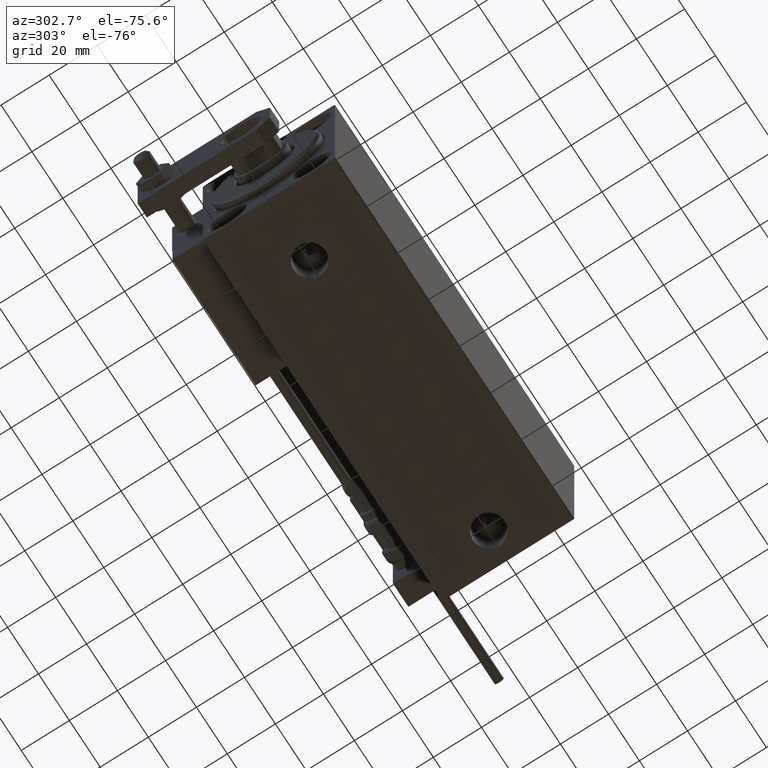
[diagram: clean part render]
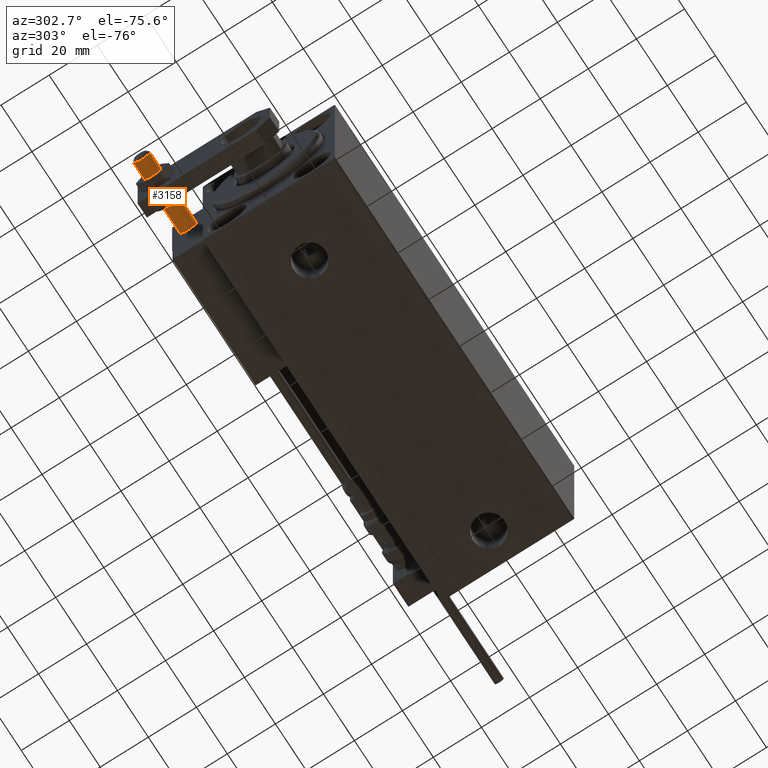
[diagram: same view with one face highlighted and labeled with its STEP entity id]
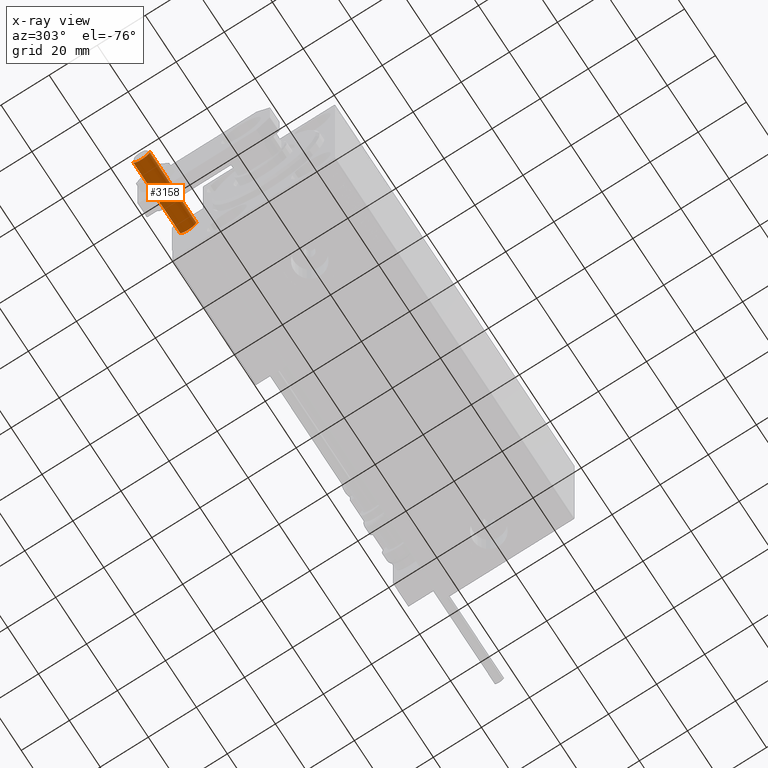
[diagram: x-ray of the same camera — body ghosted, the highlighted face saturated]
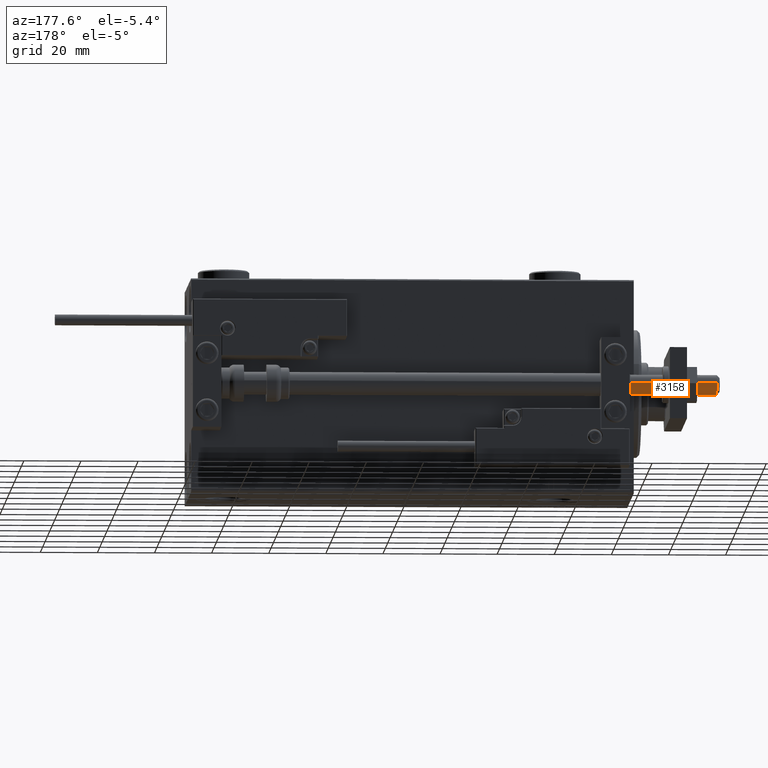
[diagram: same view with one face highlighted and labeled with its STEP entity id]
A machine part, auxiliary view. The second image highlights one B-rep face of the part: STEP entity #3158.
The next image is the same camera in x-ray: the body ghosted, the highlighted face saturated — about 0% of this face is hidden behind the body in this view.
A second angle (auxiliary view) of the same face is appended — the face is thin or edge-on in the first view.
In plain terms, the highlighted cylindrical surface (edge-blend (fillet) strip) has radius 3.5 mm, axis along (1, -0, -0).
Its self-contained STEP definition (entity closure, byte-faithful):
#1724 = EDGE_CURVE ( 'NONE', #23884, #50868, #47124, .T. ) ;
#1849 = CARTESIAN_POINT ( 'NONE',  ( 3.500000000000000000, 0.000000000000000000, -28.69999999999998863 ) ) ;
#3158 = ADVANCED_FACE ( 'NONE', ( #9357 ), #25270, .T. ) ;
#3471 = EDGE_CURVE ( 'NONE', #23884, #11546, #30863, .T. ) ;
#3984 = CARTESIAN_POINT ( 'NONE',  ( 0.000000000000000000, 0.000000000000000000, 1.500000000000025535 ) ) ;
#4229 = VERTEX_POINT ( 'NONE', #18050 ) ;
#5425 = DIRECTION ( 'NONE',  ( 1.000000000000000000, 0.000000000000000000, 0.000000000000000000 ) ) ;
#5438 = DIRECTION ( 'NONE',  ( 1.000000000000000000, 0.000000000000000000, 0.000000000000000000 ) ) ;
#9357 = FACE_OUTER_BOUND ( 'NONE', #29574, .T. ) ;
#10112 = EDGE_CURVE ( 'NONE', #4229, #11546, #17459, .T. ) ;
#11546 = VERTEX_POINT ( 'NONE', #44454 ) ;
#11638 = AXIS2_PLACEMENT_3D ( 'NONE', #3984, #19892, #5425 ) ;
#13116 = ORIENTED_EDGE ( 'NONE', *, *, #3471, .F. ) ;
#13872 = EDGE_CURVE ( 'NONE', #50868, #4229, #49865, .T. ) ;
#14755 = AXIS2_PLACEMENT_3D ( 'NONE', #21873, #33332, #5438 ) ;
#17118 = ORIENTED_EDGE ( 'NONE', *, *, #10112, .T. ) ;
#17459 = CIRCLE ( 'NONE', #11638, 3.500000000000000000 ) ;
#18050 = CARTESIAN_POINT ( 'NONE',  ( 3.500000000000000000, 0.000000000000000000, 1.500000000000025535 ) ) ;
#19892 = DIRECTION ( 'NONE',  ( 0.000000000000000000, 0.000000000000000000, -1.000000000000000000 ) ) ;
#21873 = CARTESIAN_POINT ( 'NONE',  ( 0.000000000000000000, 0.000000000000000000, -29.69999999999999929 ) ) ;
#22625 = DIRECTION ( 'NONE',  ( -1.000000000000000000, 0.000000000000000000, 0.000000000000000000 ) ) ;
#23884 = VERTEX_POINT ( 'NONE', #36761 ) ;
#24819 = ORIENTED_EDGE ( 'NONE', *, *, #13872, .T. ) ;
#25270 = CYLINDRICAL_SURFACE ( 'NONE', #14755, 3.500000000000000000 ) ;
#29574 = EDGE_LOOP ( 'NONE', ( #13116, #43223, #24819, #17118 ) ) ;
#29675 = VECTOR ( 'NONE', #39231, 1000.000000000000000 ) ;
#30060 = DIRECTION ( 'NONE',  ( -0.000000000000000000, -0.000000000000000000, 1.000000000000000000 ) ) ;
#30415 = CARTESIAN_POINT ( 'NONE',  ( 0.000000000000000000, 0.000000000000000000, -28.69999999999998863 ) ) ;
#30863 = LINE ( 'NONE', #50668, #29675 ) ;
#33332 = DIRECTION ( 'NONE',  ( -0.000000000000000000, -0.000000000000000000, 1.000000000000000000 ) ) ;
#33807 = DIRECTION ( 'NONE',  ( 0.000000000000000000, 0.000000000000000000, 1.000000000000000000 ) ) ;
#36761 = CARTESIAN_POINT ( 'NONE',  ( -3.500000000000000000, 4.286263797015736595E-16, -28.69999999999998863 ) ) ;
#39231 = DIRECTION ( 'NONE',  ( -0.000000000000000000, -0.000000000000000000, 1.000000000000000000 ) ) ;
#40917 = VECTOR ( 'NONE', #30060, 1000.000000000000000 ) ;
#42602 = CARTESIAN_POINT ( 'NONE',  ( 3.500000000000000000, 0.000000000000000000, -29.69999999999999929 ) ) ;
#43223 = ORIENTED_EDGE ( 'NONE', *, *, #1724, .T. ) ;
#44454 = CARTESIAN_POINT ( 'NONE',  ( -3.500000000000000000, 4.286263797015736595E-16, 1.500000000000025535 ) ) ;
#44639 = AXIS2_PLACEMENT_3D ( 'NONE', #30415, #33807, #22625 ) ;
#47124 = CIRCLE ( 'NONE', #44639, 3.500000000000000000 ) ;
#49865 = LINE ( 'NONE', #42602, #40917 ) ;
#50668 = CARTESIAN_POINT ( 'NONE',  ( -3.500000000000000000, 4.286263797015736595E-16, -29.69999999999999929 ) ) ;
#50868 = VERTEX_POINT ( 'NONE', #1849 ) ;